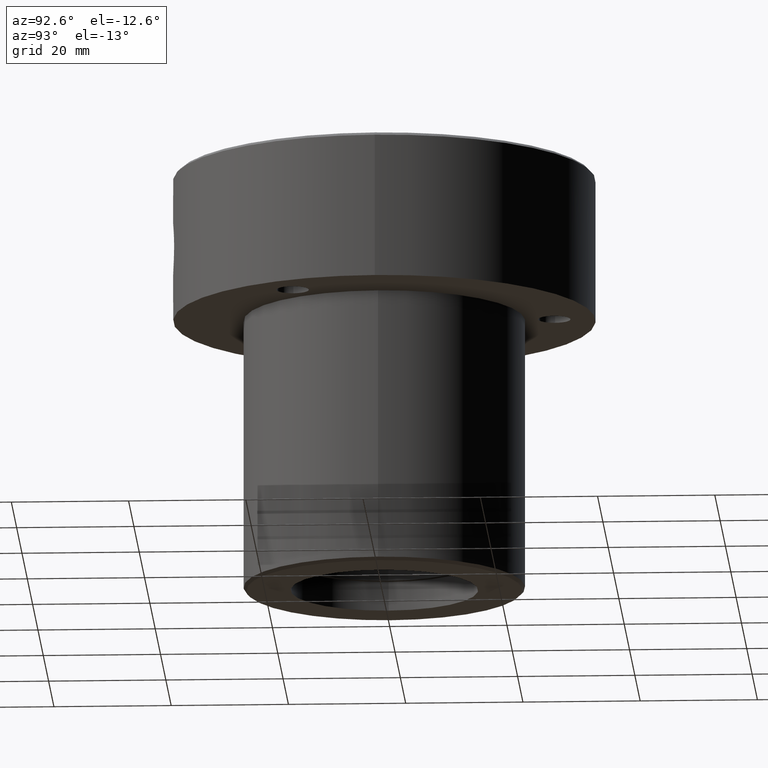
[diagram: clean part render]
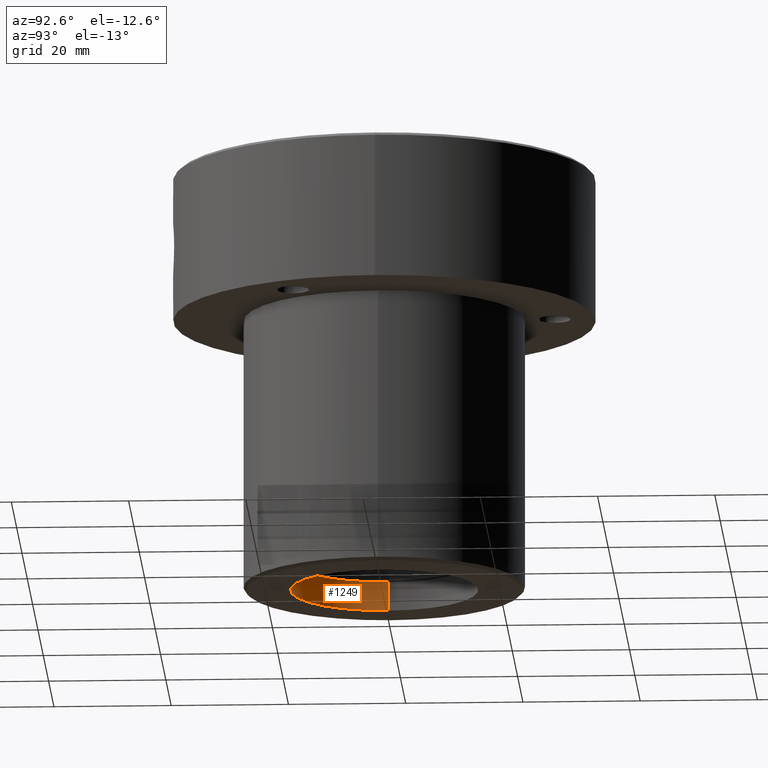
[diagram: same view with one face highlighted and labeled with its STEP entity id]
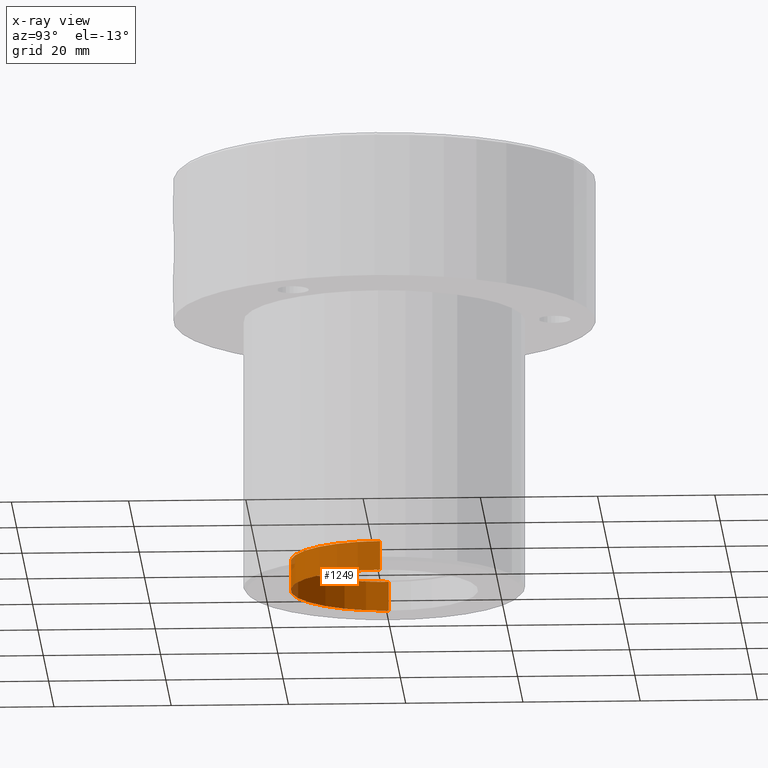
[diagram: x-ray of the same camera — body ghosted, the highlighted face saturated]
A machine part, auxiliary view. The second image highlights one B-rep face of the part: STEP entity #1249.
The next image is the same camera in x-ray: the body ghosted, the highlighted face saturated — about 1% of this face is hidden behind the body in this view.
In plain terms, the highlighted cylindrical surface (partial cylindrical patch) has radius 16 mm, axis along (-0, -0, -1).
Its self-contained STEP definition (entity closure, byte-faithful):
#4 = AXIS2_PLACEMENT_3D ( 'NONE', #106, #798, #16 ) ;
#16 = DIRECTION ( 'NONE',  ( -1.000000000000000000, 0.000000000000000000, 0.000000000000000000 ) ) ;
#41 = CARTESIAN_POINT ( 'NONE',  ( -16.00000000000000000, 0.000000000000000000, -66.99999999999998579 ) ) ;
#54 = AXIS2_PLACEMENT_3D ( 'NONE', #631, #422, #1007 ) ;
#101 = EDGE_CURVE ( 'NONE', #242, #338, #961, .T. ) ;
#106 = CARTESIAN_POINT ( 'NONE',  ( 0.000000000000000000, 0.000000000000000000, -72.00000000000000000 ) ) ;
#176 = ORIENTED_EDGE ( 'NONE', *, *, #930, .F. ) ;
#178 = VECTOR ( 'NONE', #1082, 1000.000000000000000 ) ;
#225 = DIRECTION ( 'NONE',  ( 0.000000000000000000, 0.000000000000000000, -1.000000000000000000 ) ) ;
#230 = FACE_OUTER_BOUND ( 'NONE', #649, .T. ) ;
#242 = VERTEX_POINT ( 'NONE', #41 ) ;
#297 = DIRECTION ( 'NONE',  ( -1.000000000000000000, 0.000000000000000000, 0.000000000000000000 ) ) ;
#317 = LINE ( 'NONE', #832, #178 ) ;
#338 = VERTEX_POINT ( 'NONE', #1074 ) ;
#380 = CARTESIAN_POINT ( 'NONE',  ( -16.00000000000000000, 0.000000000000000000, -66.99999999999998579 ) ) ;
#387 = CIRCLE ( 'NONE', #4, 16.00000000000000000 ) ;
#422 = DIRECTION ( 'NONE',  ( -0.000000000000000000, -0.000000000000000000, -1.000000000000000000 ) ) ;
#529 = EDGE_CURVE ( 'NONE', #647, #874, #317, .T. ) ;
#532 = CYLINDRICAL_SURFACE ( 'NONE', #54, 16.00000000000000000 ) ;
#545 = AXIS2_PLACEMENT_3D ( 'NONE', #905, #225, #297 ) ;
#563 = CARTESIAN_POINT ( 'NONE',  ( 16.00000000000000000, 1.959434878635765131E-15, -72.00000000000000000 ) ) ;
#631 = CARTESIAN_POINT ( 'NONE',  ( 0.000000000000000000, 0.000000000000000000, -66.99999999999998579 ) ) ;
#647 = VERTEX_POINT ( 'NONE', #1171 ) ;
#649 = EDGE_LOOP ( 'NONE', ( #176, #1203, #952, #1128 ) ) ;
#798 = DIRECTION ( 'NONE',  ( 0.000000000000000000, 0.000000000000000000, -1.000000000000000000 ) ) ;
#832 = CARTESIAN_POINT ( 'NONE',  ( 16.00000000000000000, 1.959434878635765131E-15, -66.99999999999998579 ) ) ;
#874 = VERTEX_POINT ( 'NONE', #563 ) ;
#905 = CARTESIAN_POINT ( 'NONE',  ( 0.000000000000000000, 0.000000000000000000, -66.99999999999998579 ) ) ;
#930 = EDGE_CURVE ( 'NONE', #647, #242, #1086, .T. ) ;
#952 = ORIENTED_EDGE ( 'NONE', *, *, #1051, .T. ) ;
#961 = LINE ( 'NONE', #380, #1159 ) ;
#1007 = DIRECTION ( 'NONE',  ( -1.000000000000000000, 0.000000000000000000, 0.000000000000000000 ) ) ;
#1051 = EDGE_CURVE ( 'NONE', #874, #338, #387, .T. ) ;
#1074 = CARTESIAN_POINT ( 'NONE',  ( -16.00000000000000000, 0.000000000000000000, -72.00000000000000000 ) ) ;
#1082 = DIRECTION ( 'NONE',  ( -0.000000000000000000, -0.000000000000000000, -1.000000000000000000 ) ) ;
#1086 = CIRCLE ( 'NONE', #545, 16.00000000000000000 ) ;
#1128 = ORIENTED_EDGE ( 'NONE', *, *, #101, .F. ) ;
#1150 = DIRECTION ( 'NONE',  ( -0.000000000000000000, -0.000000000000000000, -1.000000000000000000 ) ) ;
#1159 = VECTOR ( 'NONE', #1150, 1000.000000000000000 ) ;
#1171 = CARTESIAN_POINT ( 'NONE',  ( 16.00000000000000000, 1.959434878635765131E-15, -66.99999999999998579 ) ) ;
#1203 = ORIENTED_EDGE ( 'NONE', *, *, #529, .T. ) ;
#1249 = ADVANCED_FACE ( 'NONE', ( #230 ), #532, .F. ) ;